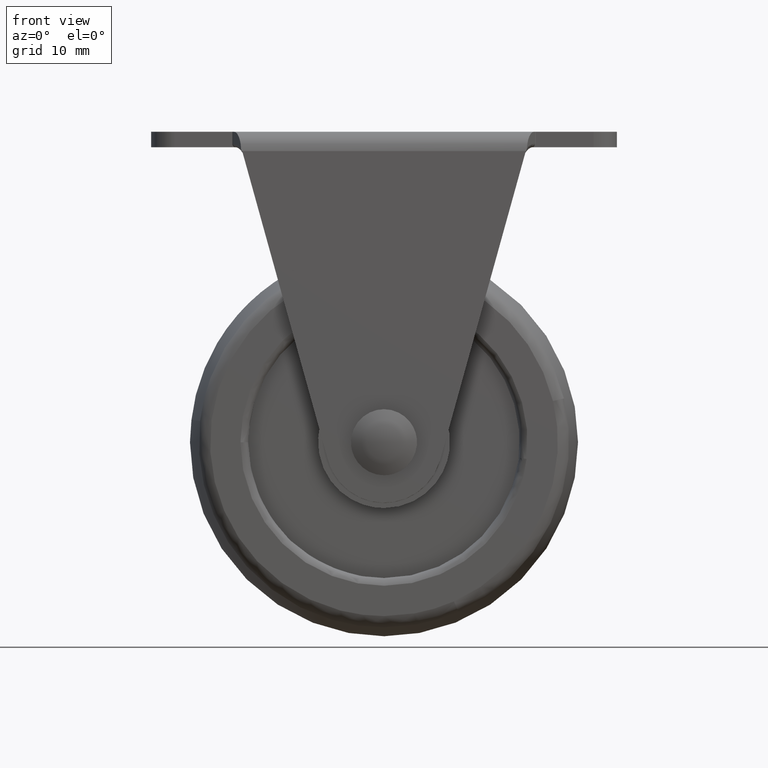
[diagram: clean part render]
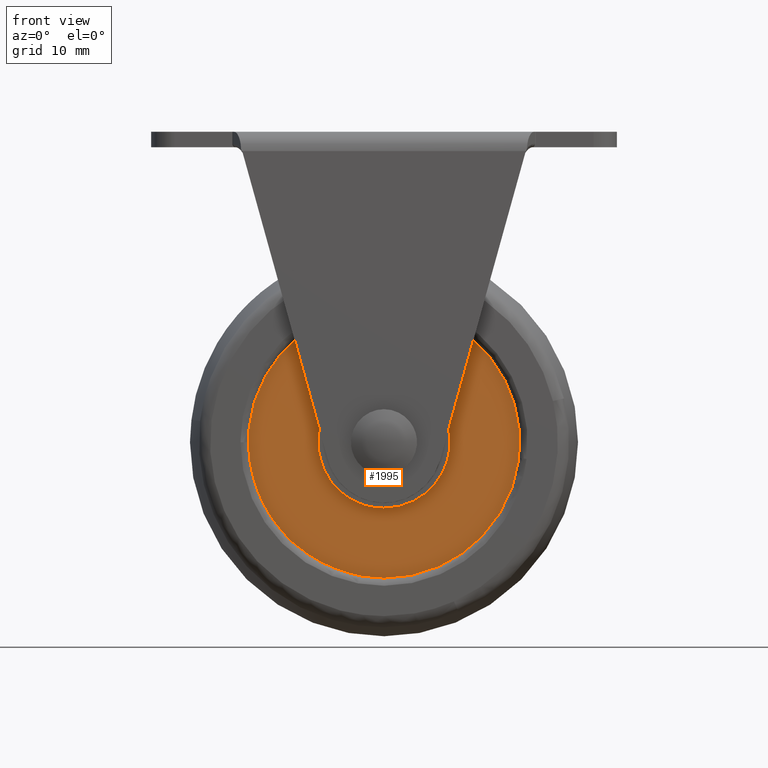
[diagram: same view with one face highlighted and labeled with its STEP entity id]
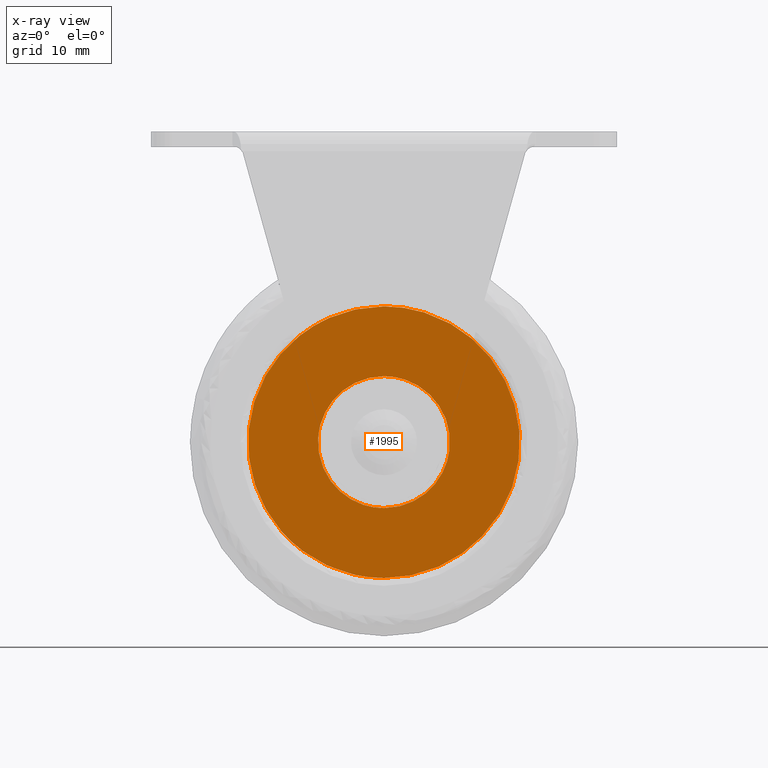
[diagram: x-ray of the same camera — body ghosted, the highlighted face saturated]
A machine part, front view. The second image highlights one B-rep face of the part: STEP entity #1995.
The next image is the same camera in x-ray: the body ghosted, the highlighted face saturated — about 0% of this face is hidden behind the body in this view.
In plain terms, the highlighted face is a freeform B-spline surface patch.
Its self-contained STEP definition (entity closure, byte-faithful):
#532=CARTESIAN_POINT('',(13.695644394306960,-8.000000000000101,-29.105995932409371));
#533=VERTEX_POINT('',#532);
#539=CARTESIAN_POINT('',(0.0,-8.000000000000101,-57.500000000000000));
#540=VERTEX_POINT('',#539);
#541=CARTESIAN_POINT('',(0.0,-8.000000000000101,-57.500000000000000));
#542=CARTESIAN_POINT('',(17.499999999999996,-8.000000000000103,-57.499999999999986));
#543=CARTESIAN_POINT('',(17.500000000000000,-8.000000000000101,-40.0));
#544=CARTESIAN_POINT('',(17.500000000000004,-8.000000000000101,-33.888727901462140));
#545=CARTESIAN_POINT('',(13.695644394306967,-8.000000000000101,-29.105995932409368));
#553=(BOUNDED_CURVE()B_SPLINE_CURVE(2,(#541,#542,#543,#544,#545),.UNSPECIFIED.,.F.,.U.)B_SPLINE_CURVE_WITH_KNOTS((3,2,3),(0.0,0.250000000000000,0.357863854472768),.UNSPECIFIED.)CURVE()GEOMETRIC_REPRESENTATION_ITEM()RATIONAL_B_SPLINE_CURVE((1.0,0.707106781186548,1.0,0.873629633879381,0.856305626006001))REPRESENTATION_ITEM(''));
#554=EDGE_CURVE('',#540,#533,#553,.T.);
#556=CARTESIAN_POINT('',(-10.894004020815061,-8.000000000000101,-26.304355568486091));
#557=VERTEX_POINT('',#556);
#558=CARTESIAN_POINT('',(-10.894004020815061,-8.000000000000103,-26.304355568486091));
#559=CARTESIAN_POINT('',(-17.500000000000007,-8.000000000000105,-31.559000365859109));
#560=CARTESIAN_POINT('',(-17.500000000000000,-8.000000000000101,-40.0));
#561=CARTESIAN_POINT('',(-17.499999999999996,-8.000000000000103,-57.499999999999986));
#562=CARTESIAN_POINT('',(0.0,-8.000000000000101,-57.500000000000000));
#570=(BOUNDED_CURVE()B_SPLINE_CURVE(2,(#558,#559,#560,#561,#562),.UNSPECIFIED.,.F.,.U.)B_SPLINE_CURVE_WITH_KNOTS((3,2,3),(0.607863853955768,0.750000000000000,1.0),.UNSPECIFIED.)CURVE()GEOMETRIC_REPRESENTATION_ITEM()RATIONAL_B_SPLINE_CURVE((0.856305626172071,0.833477146701464,1.0,0.707106781186548,1.0))REPRESENTATION_ITEM(''));
#571=EDGE_CURVE('',#557,#540,#570,.T.);
#611=CARTESIAN_POINT('',(0.0,-8.000000000000101,-22.500000000000000));
#612=VERTEX_POINT('',#611);
#613=CARTESIAN_POINT('',(0.0,-8.000000000000101,-22.500000000000000));
#614=CARTESIAN_POINT('',(-6.111272065009016,-8.000000000000101,-22.500000000000004));
#615=CARTESIAN_POINT('',(-10.894004020815061,-8.000000000000103,-26.304355568486091));
#623=(BOUNDED_CURVE()B_SPLINE_CURVE(2,(#613,#614,#615),.UNSPECIFIED.,.F.,.U.)B_SPLINE_CURVE_WITH_KNOTS((3,3),(0.500000000000000,0.607863853955768),.UNSPECIFIED.)CURVE()GEOMETRIC_REPRESENTATION_ITEM()RATIONAL_B_SPLINE_CURVE((1.0,0.873629634485084,0.856305626172071))REPRESENTATION_ITEM(''));
#624=EDGE_CURVE('',#612,#557,#623,.T.);
#626=CARTESIAN_POINT('',(13.695644394306967,-8.000000000000101,-29.105995932409368));
#627=CARTESIAN_POINT('',(8.440999597303751,-8.000000000000101,-22.500000000000004));
#628=CARTESIAN_POINT('',(0.0,-8.000000000000101,-22.500000000000000));
#636=(BOUNDED_CURVE()B_SPLINE_CURVE(2,(#626,#627,#628),.UNSPECIFIED.,.F.,.U.)B_SPLINE_CURVE_WITH_KNOTS((3,3),(0.357863854472768,0.500000000000000),.UNSPECIFIED.)CURVE()GEOMETRIC_REPRESENTATION_ITEM()RATIONAL_B_SPLINE_CURVE((0.856305626006001,0.833477147307167,1.0))REPRESENTATION_ITEM(''));
#637=EDGE_CURVE('',#533,#612,#636,.T.);
#678=CARTESIAN_POINT('',(8.440580974085195,-8.000000000000101,-41.003290994632657));
#679=VERTEX_POINT('',#678);
#680=CARTESIAN_POINT('',(0.0,-8.000000000000101,-31.500000000000000));
#681=VERTEX_POINT('',#680);
#682=CARTESIAN_POINT('',(8.440580974085195,-8.000000000000101,-41.003290994632657));
#683=CARTESIAN_POINT('',(8.499999999999998,-8.000000000000101,-40.503405017091978));
#684=CARTESIAN_POINT('',(8.500000000000000,-8.000000000000101,-40.0));
#685=CARTESIAN_POINT('',(8.500000000000002,-8.000000000000103,-31.500000000000000));
#686=CARTESIAN_POINT('',(0.0,-8.000000000000101,-31.500000000000000));
#694=(BOUNDED_CURVE()B_SPLINE_CURVE(2,(#682,#683,#684,#685,#686),.UNSPECIFIED.,.F.,.U.)B_SPLINE_CURVE_WITH_KNOTS((3,2,3),(0.229562473513633,0.250000000000000,0.500000000000000),.UNSPECIFIED.)CURVE()GEOMETRIC_REPRESENTATION_ITEM()RATIONAL_B_SPLINE_CURVE((0.956026754183944,0.976055948331292,1.0,0.707106781186548,1.0))REPRESENTATION_ITEM(''));
#695=EDGE_CURVE('',#679,#681,#694,.T.);
#697=CARTESIAN_POINT('',(-8.484145906601784,-8.000000000000087,-39.481089376204039));
#698=VERTEX_POINT('',#697);
#699=CARTESIAN_POINT('',(0.0,-8.000000000000101,-31.500000000000000));
#700=CARTESIAN_POINT('',(-7.996003421504637,-8.000000000000101,-31.500000000000007));
#701=CARTESIAN_POINT('',(-8.484145906601784,-8.000000000000087,-39.481089376204039));
#709=(BOUNDED_CURVE()B_SPLINE_CURVE(2,(#699,#700,#701),.UNSPECIFIED.,.F.,.U.)B_SPLINE_CURVE_WITH_KNOTS((3,3),(0.500000000000000,0.739333002149345),.UNSPECIFIED.)CURVE()GEOMETRIC_REPRESENTATION_ITEM()RATIONAL_B_SPLINE_CURVE((1.0,0.719603946528765,0.976072127202322))REPRESENTATION_ITEM(''));
#710=EDGE_CURVE('',#681,#698,#709,.T.);
#777=CARTESIAN_POINT('',(0.0,-8.000000000000101,-48.500000000000000));
#778=VERTEX_POINT('',#777);
#779=CARTESIAN_POINT('',(0.0,-8.000000000000101,-48.500000000000000));
#780=CARTESIAN_POINT('',(7.549483470496162,-8.000000000000101,-48.499999999999993));
#781=CARTESIAN_POINT('',(8.440580974085195,-8.000000000000101,-41.003290994632664));
#789=(BOUNDED_CURVE()B_SPLINE_CURVE(2,(#779,#780,#781),.UNSPECIFIED.,.F.,.U.)B_SPLINE_CURVE_WITH_KNOTS((3,3),(0.0,0.229562473513633),.UNSPECIFIED.)CURVE()GEOMETRIC_REPRESENTATION_ITEM()RATIONAL_B_SPLINE_CURVE((1.0,0.731050832855256,0.956026754183944))REPRESENTATION_ITEM(''));
#790=EDGE_CURVE('',#778,#679,#789,.T.);
#824=CARTESIAN_POINT('',(-8.484145906601784,-8.000000000000087,-39.481089376204039));
#825=CARTESIAN_POINT('',(-8.500000000000002,-8.000000000000101,-39.740302495838122));
#826=CARTESIAN_POINT('',(-8.500000000000000,-8.000000000000101,-40.0));
#827=CARTESIAN_POINT('',(-8.500000000000002,-8.000000000000103,-48.500000000000007));
#828=CARTESIAN_POINT('',(0.0,-8.000000000000101,-48.500000000000000));
#836=(BOUNDED_CURVE()B_SPLINE_CURVE(2,(#824,#825,#826,#827,#828),.UNSPECIFIED.,.F.,.U.)B_SPLINE_CURVE_WITH_KNOTS((3,2,3),(0.739333002149345,0.750000000000000,1.0),.UNSPECIFIED.)CURVE()GEOMETRIC_REPRESENTATION_ITEM()RATIONAL_B_SPLINE_CURVE((0.976072127202322,0.987502834657782,1.0,0.707106781186548,1.0))REPRESENTATION_ITEM(''));
#837=EDGE_CURVE('',#698,#778,#836,.T.);
#1978=CARTESIAN_POINT('',(-19.247839191886769,-8.000000000000101,-20.751750067836792));
#1979=CARTESIAN_POINT('',(-19.247839191886769,-8.000000000000101,-59.248250870936367));
#1980=CARTESIAN_POINT('',(19.248223463031639,-8.000000000000101,-20.751750067836792));
#1981=CARTESIAN_POINT('',(19.248223463031639,-8.000000000000101,-59.248250870936367));
#1982=B_SPLINE_SURFACE_WITH_KNOTS('',1,1,((#1978,#1980),(#1979,#1981)),.UNSPECIFIED.,.F.,.F.,.U.,(2,2),(2,2),(0.0,38.496500803099579),(0.0,38.496062654918397),.UNSPECIFIED.);
#1983=ORIENTED_EDGE('',*,*,#554,.T.);
#1984=ORIENTED_EDGE('',*,*,#637,.T.);
#1985=ORIENTED_EDGE('',*,*,#624,.T.);
#1986=ORIENTED_EDGE('',*,*,#571,.T.);
#1987=EDGE_LOOP('',(#1983,#1984,#1985,#1986));
#1988=FACE_OUTER_BOUND('',#1987,.T.);
#1989=ORIENTED_EDGE('',*,*,#710,.F.);
#1990=ORIENTED_EDGE('',*,*,#695,.F.);
#1991=ORIENTED_EDGE('',*,*,#790,.F.);
#1992=ORIENTED_EDGE('',*,*,#837,.F.);
#1993=EDGE_LOOP('',(#1989,#1990,#1991,#1992));
#1994=FACE_BOUND('',#1993,.T.);
#1995=ADVANCED_FACE('',(#1988,#1994),#1982,.T.);